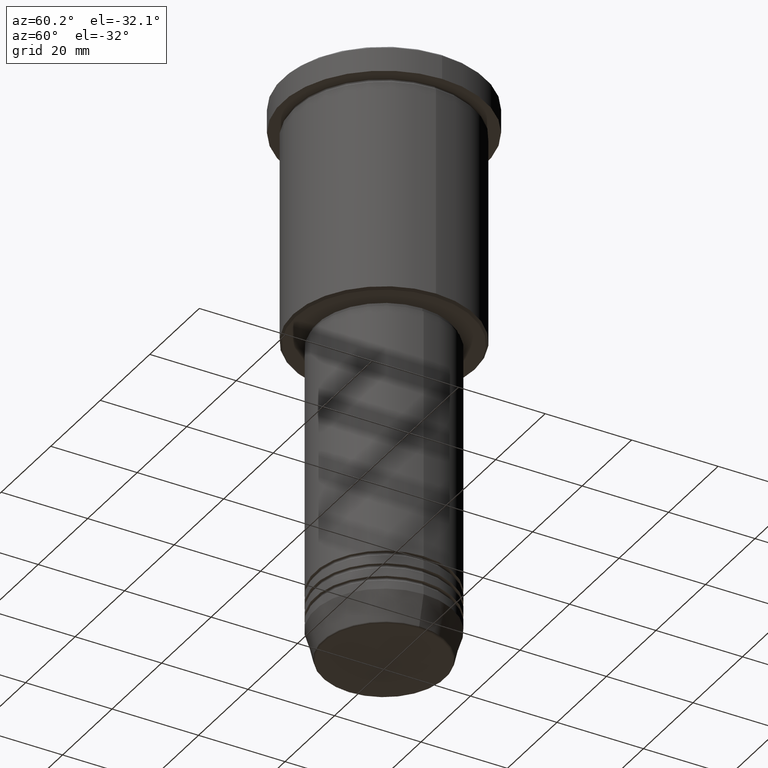
[diagram: clean part render]
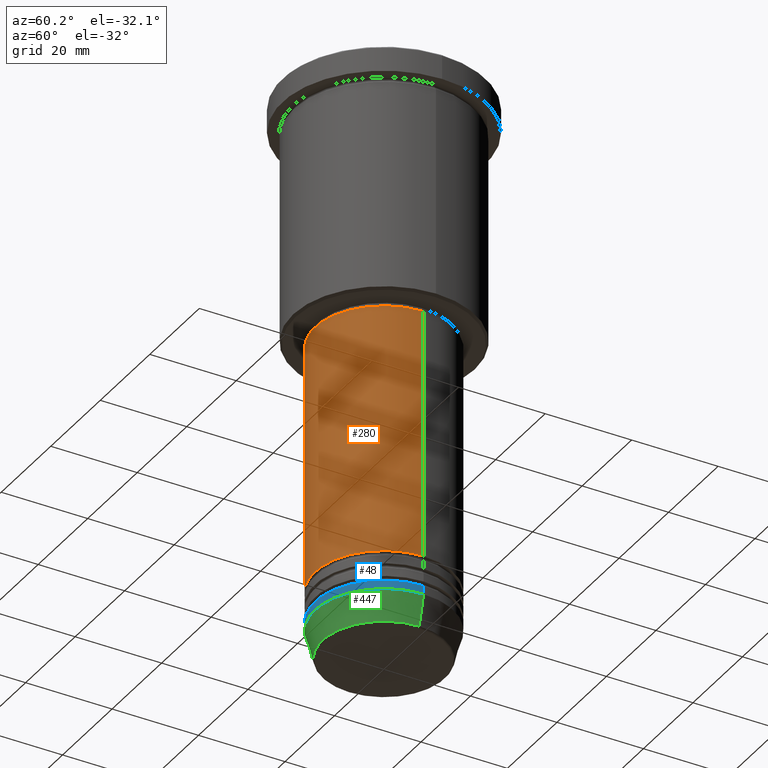
[diagram: same view with three faces highlighted in distinct colors, each labeled with its STEP entity id]
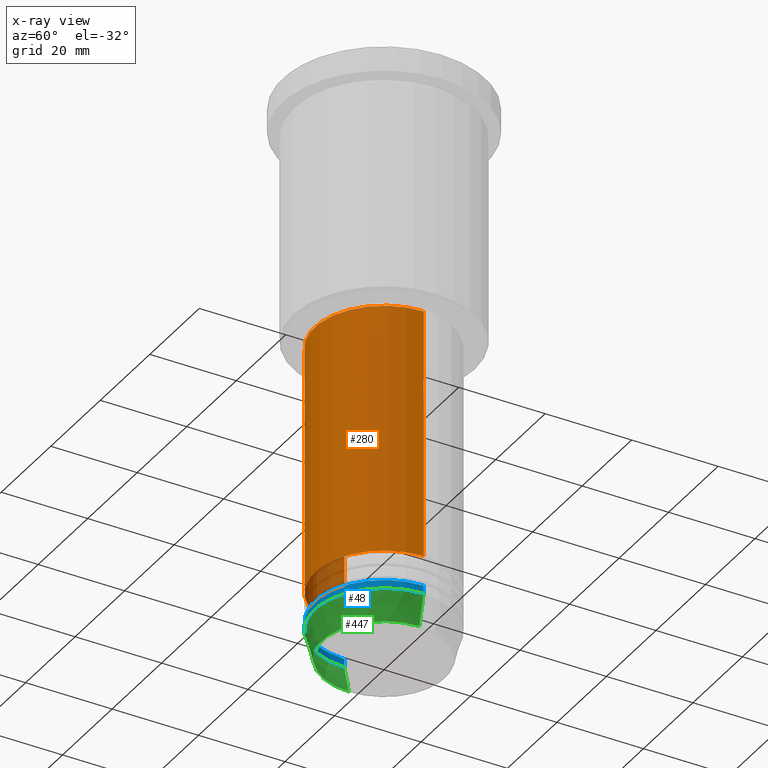
[diagram: x-ray of the same camera — body ghosted, the three highlighted faces saturated]
A machine part, auxiliary view with three faces highlighted in distinct colors.
The next image is the same camera in x-ray (body ghosted, the three faces saturated) — at least one of them is partly hidden behind the body in this view.
Their STEP definitions:

[orange] entity #280 — the highlighted cylindrical surface (partial cylindrical patch) has radius 16 mm, axis along (-0, -0, 1).
#53 = CARTESIAN_POINT ( 'NONE',  ( 0.000000000000000000, 0.000000000000000000, 0.000000000000000000 ) ) ;
#63 = LINE ( 'NONE', #705, #802 ) ;
#80 = CARTESIAN_POINT ( 'NONE',  ( 16.00000000000000000, 0.000000000000000000, -57.00000000000000000 ) ) ;
#86 = DIRECTION ( 'NONE',  ( -0.000000000000000000, -0.000000000000000000, 1.000000000000000000 ) ) ;
#107 = EDGE_LOOP ( 'NONE', ( #577, #185, #473, #1126 ) ) ;
#147 = AXIS2_PLACEMENT_3D ( 'NONE', #53, #688, #423 ) ;
#159 = CARTESIAN_POINT ( 'NONE',  ( 16.00000000000000000, 0.000000000000000000, 0.000000000000000000 ) ) ;
#185 = ORIENTED_EDGE ( 'NONE', *, *, #920, .T. ) ;
#217 = CARTESIAN_POINT ( 'NONE',  ( 0.000000000000000000, 0.000000000000000000, -57.00000000000000000 ) ) ;
#245 = VECTOR ( 'NONE', #289, 1000.000000000000000 ) ;
#259 = VERTEX_POINT ( 'NONE', #766 ) ;
#280 = ADVANCED_FACE ( 'NONE', ( #793 ), #1044, .T. ) ;
#289 = DIRECTION ( 'NONE',  ( -0.000000000000000000, -0.000000000000000000, 1.000000000000000000 ) ) ;
#343 = EDGE_CURVE ( 'NONE', #1025, #590, #63, .T. ) ;
#377 = EDGE_CURVE ( 'NONE', #590, #510, #478, .T. ) ;
#423 = DIRECTION ( 'NONE',  ( 1.000000000000000000, 0.000000000000000000, 0.000000000000000000 ) ) ;
#448 = DIRECTION ( 'NONE',  ( 1.000000000000000000, 0.000000000000000000, 0.000000000000000000 ) ) ;
#473 = ORIENTED_EDGE ( 'NONE', *, *, #1031, .T. ) ;
#478 = CIRCLE ( 'NONE', #704, 16.00000000000000000 ) ;
#510 = VERTEX_POINT ( 'NONE', #80 ) ;
#555 = CIRCLE ( 'NONE', #611, 16.00000000000000000 ) ;
#577 = ORIENTED_EDGE ( 'NONE', *, *, #343, .F. ) ;
#590 = VERTEX_POINT ( 'NONE', #1022 ) ;
#611 = AXIS2_PLACEMENT_3D ( 'NONE', #1082, #86, #448 ) ;
#688 = DIRECTION ( 'NONE',  ( -0.000000000000000000, -0.000000000000000000, 1.000000000000000000 ) ) ;
#704 = AXIS2_PLACEMENT_3D ( 'NONE', #217, #773, #1129 ) ;
#705 = CARTESIAN_POINT ( 'NONE',  ( -16.00000000000000000, 1.959434878635765131E-15, 0.000000000000000000 ) ) ;
#724 = LINE ( 'NONE', #159, #245 ) ;
#766 = CARTESIAN_POINT ( 'NONE',  ( 16.00000000000000000, 0.000000000000000000, -114.9999999999999574 ) ) ;
#773 = DIRECTION ( 'NONE',  ( -0.000000000000000000, -0.000000000000000000, 1.000000000000000000 ) ) ;
#793 = FACE_OUTER_BOUND ( 'NONE', #107, .T. ) ;
#802 = VECTOR ( 'NONE', #883, 1000.000000000000000 ) ;
#883 = DIRECTION ( 'NONE',  ( -0.000000000000000000, -0.000000000000000000, 1.000000000000000000 ) ) ;
#899 = CARTESIAN_POINT ( 'NONE',  ( -16.00000000000000000, 1.959434878635765131E-15, -114.9999999999999574 ) ) ;
#920 = EDGE_CURVE ( 'NONE', #1025, #259, #555, .T. ) ;
#1022 = CARTESIAN_POINT ( 'NONE',  ( -16.00000000000000000, 1.959434878635765131E-15, -57.00000000000000000 ) ) ;
#1025 = VERTEX_POINT ( 'NONE', #899 ) ;
#1031 = EDGE_CURVE ( 'NONE', #259, #510, #724, .T. ) ;
#1044 = CYLINDRICAL_SURFACE ( 'NONE', #147, 16.00000000000000000 ) ;
#1082 = CARTESIAN_POINT ( 'NONE',  ( 0.000000000000000000, 0.000000000000000000, -114.9999999999999574 ) ) ;
#1126 = ORIENTED_EDGE ( 'NONE', *, *, #377, .F. ) ;
#1129 = DIRECTION ( 'NONE',  ( 1.000000000000000000, 0.000000000000000000, 0.000000000000000000 ) ) ;

[blue] entity #48 — the highlighted cylindrical surface (partial cylindrical patch) has radius 16 mm, axis along (-0, -0, 1).
#5 = ORIENTED_EDGE ( 'NONE', *, *, #251, .T. ) ;
#43 = ORIENTED_EDGE ( 'NONE', *, *, #76, .F. ) ;
#48 = ADVANCED_FACE ( 'NONE', ( #514 ), #966, .T. ) ;
#76 = EDGE_CURVE ( 'NONE', #121, #388, #440, .T. ) ;
#116 = CARTESIAN_POINT ( 'NONE',  ( 0.000000000000000000, 0.000000000000000000, -124.0000000000000000 ) ) ;
#121 = VERTEX_POINT ( 'NONE', #1014 ) ;
#180 = CIRCLE ( 'NONE', #196, 16.00000000000000000 ) ;
#196 = AXIS2_PLACEMENT_3D ( 'NONE', #116, #277, #586 ) ;
#205 = DIRECTION ( 'NONE',  ( -0.000000000000000000, -0.000000000000000000, 1.000000000000000000 ) ) ;
#251 = EDGE_CURVE ( 'NONE', #792, #1047, #180, .T. ) ;
#258 = LINE ( 'NONE', #452, #378 ) ;
#273 = VECTOR ( 'NONE', #427, 1000.000000000000000 ) ;
#277 = DIRECTION ( 'NONE',  ( -0.000000000000000000, -0.000000000000000000, 1.000000000000000000 ) ) ;
#316 = CARTESIAN_POINT ( 'NONE',  ( -16.00000000000000000, 1.959434878635765131E-15, 0.000000000000000000 ) ) ;
#323 = AXIS2_PLACEMENT_3D ( 'NONE', #1151, #205, #938 ) ;
#346 = EDGE_LOOP ( 'NONE', ( #1181, #5, #597, #43 ) ) ;
#378 = VECTOR ( 'NONE', #815, 1000.000000000000000 ) ;
#388 = VERTEX_POINT ( 'NONE', #987 ) ;
#404 = DIRECTION ( 'NONE',  ( 1.000000000000000000, 0.000000000000000000, 0.000000000000000000 ) ) ;
#427 = DIRECTION ( 'NONE',  ( -0.000000000000000000, -0.000000000000000000, 1.000000000000000000 ) ) ;
#440 = CIRCLE ( 'NONE', #323, 16.00000000000000000 ) ;
#452 = CARTESIAN_POINT ( 'NONE',  ( 16.00000000000000000, 0.000000000000000000, 0.000000000000000000 ) ) ;
#514 = FACE_OUTER_BOUND ( 'NONE', #346, .T. ) ;
#515 = CARTESIAN_POINT ( 'NONE',  ( -16.00000000000000000, 1.959434878635765131E-15, -124.0000000000000000 ) ) ;
#550 = AXIS2_PLACEMENT_3D ( 'NONE', #648, #666, #404 ) ;
#586 = DIRECTION ( 'NONE',  ( 1.000000000000000000, 0.000000000000000000, 0.000000000000000000 ) ) ;
#597 = ORIENTED_EDGE ( 'NONE', *, *, #991, .T. ) ;
#648 = CARTESIAN_POINT ( 'NONE',  ( 0.000000000000000000, 0.000000000000000000, 0.000000000000000000 ) ) ;
#666 = DIRECTION ( 'NONE',  ( -0.000000000000000000, -0.000000000000000000, 1.000000000000000000 ) ) ;
#715 = EDGE_CURVE ( 'NONE', #792, #121, #1132, .T. ) ;
#792 = VERTEX_POINT ( 'NONE', #515 ) ;
#815 = DIRECTION ( 'NONE',  ( -0.000000000000000000, -0.000000000000000000, 1.000000000000000000 ) ) ;
#938 = DIRECTION ( 'NONE',  ( 1.000000000000000000, 0.000000000000000000, 0.000000000000000000 ) ) ;
#948 = CARTESIAN_POINT ( 'NONE',  ( 16.00000000000000000, 0.000000000000000000, -124.0000000000000000 ) ) ;
#966 = CYLINDRICAL_SURFACE ( 'NONE', #550, 16.00000000000000000 ) ;
#987 = CARTESIAN_POINT ( 'NONE',  ( 16.00000000000000000, 0.000000000000000000, -122.0000000000000000 ) ) ;
#991 = EDGE_CURVE ( 'NONE', #1047, #388, #258, .T. ) ;
#1014 = CARTESIAN_POINT ( 'NONE',  ( -16.00000000000000000, 1.959434878635765131E-15, -122.0000000000000000 ) ) ;
#1047 = VERTEX_POINT ( 'NONE', #948 ) ;
#1132 = LINE ( 'NONE', #316, #273 ) ;
#1151 = CARTESIAN_POINT ( 'NONE',  ( 0.000000000000000000, 0.000000000000000000, -122.0000000000000000 ) ) ;
#1181 = ORIENTED_EDGE ( 'NONE', *, *, #715, .F. ) ;

[green] entity #447 — the highlighted conical surface has half-angle 15 deg.
#20 = ORIENTED_EDGE ( 'NONE', *, *, #486, .F. ) ;
#92 = VERTEX_POINT ( 'NONE', #430 ) ;
#100 = VERTEX_POINT ( 'NONE', #187 ) ;
#116 = CARTESIAN_POINT ( 'NONE',  ( 0.000000000000000000, 0.000000000000000000, -124.0000000000000000 ) ) ;
#180 = CIRCLE ( 'NONE', #196, 16.00000000000000000 ) ;
#187 = CARTESIAN_POINT ( 'NONE',  ( -14.22365507213718949, 1.850665122131323731E-15, -130.6294095225512706 ) ) ;
#196 = AXIS2_PLACEMENT_3D ( 'NONE', #116, #277, #586 ) ;
#251 = EDGE_CURVE ( 'NONE', #792, #1047, #180, .T. ) ;
#277 = DIRECTION ( 'NONE',  ( -0.000000000000000000, -0.000000000000000000, 1.000000000000000000 ) ) ;
#366 = DIRECTION ( 'NONE',  ( -0.000000000000000000, -0.000000000000000000, 1.000000000000000000 ) ) ;
#368 = DIRECTION ( 'NONE',  ( 1.000000000000000000, 0.000000000000000000, 0.000000000000000000 ) ) ;
#430 = CARTESIAN_POINT ( 'NONE',  ( 14.22365507213718949, 0.000000000000000000, -130.6294095225512706 ) ) ;
#447 = ADVANCED_FACE ( 'NONE', ( #714 ), #968, .T. ) ;
#486 = EDGE_CURVE ( 'NONE', #100, #792, #908, .T. ) ;
#515 = CARTESIAN_POINT ( 'NONE',  ( -16.00000000000000000, 1.959434878635765131E-15, -124.0000000000000000 ) ) ;
#519 = CIRCLE ( 'NONE', #881, 14.22365507213718949 ) ;
#556 = EDGE_LOOP ( 'NONE', ( #20, #941, #1171, #775 ) ) ;
#586 = DIRECTION ( 'NONE',  ( 1.000000000000000000, 0.000000000000000000, 0.000000000000000000 ) ) ;
#598 = LINE ( 'NONE', #772, #720 ) ;
#602 = DIRECTION ( 'NONE',  ( 0.2588190451025213501, 0.000000000000000000, 0.9659258262890680902 ) ) ;
#615 = CARTESIAN_POINT ( 'NONE',  ( -16.00000000000000000, 1.959434878635765131E-15, -124.0000000000000000 ) ) ;
#677 = EDGE_CURVE ( 'NONE', #100, #92, #519, .T. ) ;
#684 = VECTOR ( 'NONE', #1074, 1000.000000000000000 ) ;
#701 = EDGE_CURVE ( 'NONE', #92, #1047, #598, .T. ) ;
#714 = FACE_OUTER_BOUND ( 'NONE', #556, .T. ) ;
#720 = VECTOR ( 'NONE', #602, 1000.000000000000000 ) ;
#772 = CARTESIAN_POINT ( 'NONE',  ( 16.00000000000000000, 0.000000000000000000, -124.0000000000000000 ) ) ;
#775 = ORIENTED_EDGE ( 'NONE', *, *, #251, .F. ) ;
#783 = AXIS2_PLACEMENT_3D ( 'NONE', #816, #366, #368 ) ;
#792 = VERTEX_POINT ( 'NONE', #515 ) ;
#816 = CARTESIAN_POINT ( 'NONE',  ( 0.000000000000000000, 0.000000000000000000, -124.0000000000000000 ) ) ;
#863 = DIRECTION ( 'NONE',  ( -0.000000000000000000, -0.000000000000000000, 1.000000000000000000 ) ) ;
#881 = AXIS2_PLACEMENT_3D ( 'NONE', #1142, #863, #962 ) ;
#908 = LINE ( 'NONE', #615, #684 ) ;
#941 = ORIENTED_EDGE ( 'NONE', *, *, #677, .T. ) ;
#948 = CARTESIAN_POINT ( 'NONE',  ( 16.00000000000000000, 0.000000000000000000, -124.0000000000000000 ) ) ;
#962 = DIRECTION ( 'NONE',  ( 1.000000000000000000, 0.000000000000000000, 0.000000000000000000 ) ) ;
#968 = CONICAL_SURFACE ( 'NONE', #783, 16.00000000000000000, 0.2617993877991500740 ) ;
#1047 = VERTEX_POINT ( 'NONE', #948 ) ;
#1074 = DIRECTION ( 'NONE',  ( -0.2588190451025213501, 3.169619151431772337E-17, 0.9659258262890680902 ) ) ;
#1142 = CARTESIAN_POINT ( 'NONE',  ( 0.000000000000000000, 0.000000000000000000, -130.6294095225512706 ) ) ;
#1171 = ORIENTED_EDGE ( 'NONE', *, *, #701, .T. ) ;